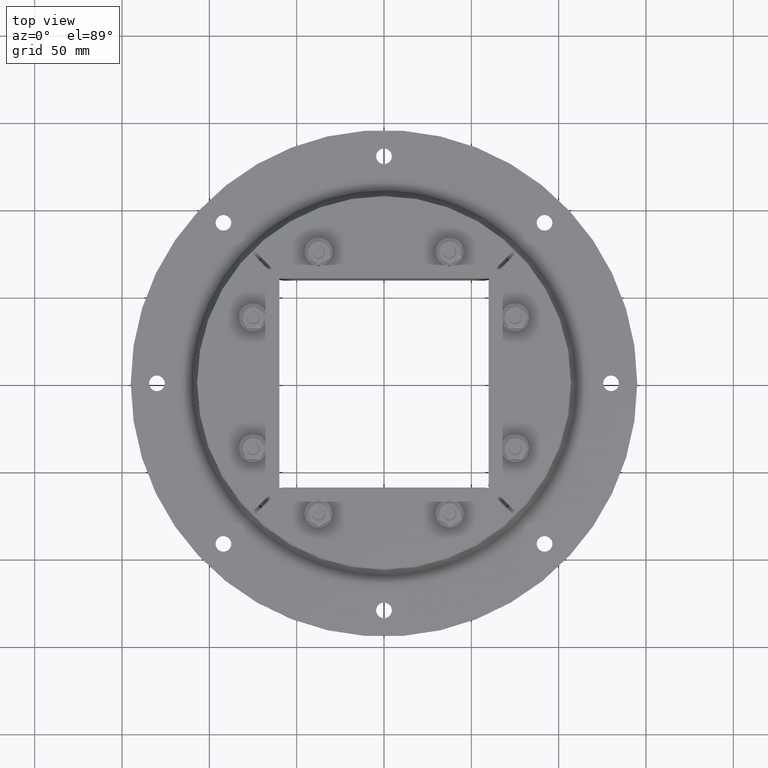
[diagram: clean part render]
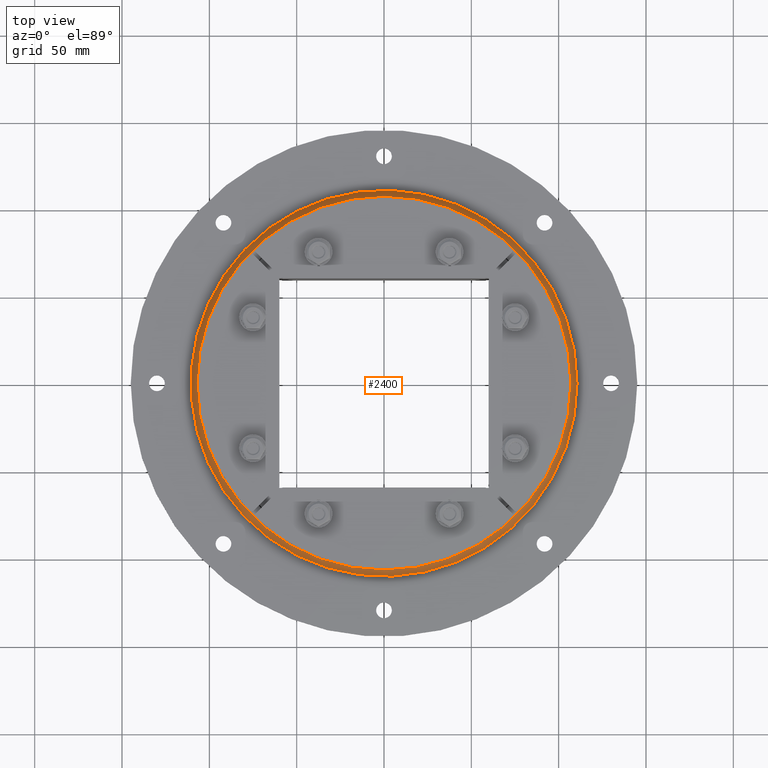
[diagram: same view with one face highlighted and labeled with its STEP entity id]
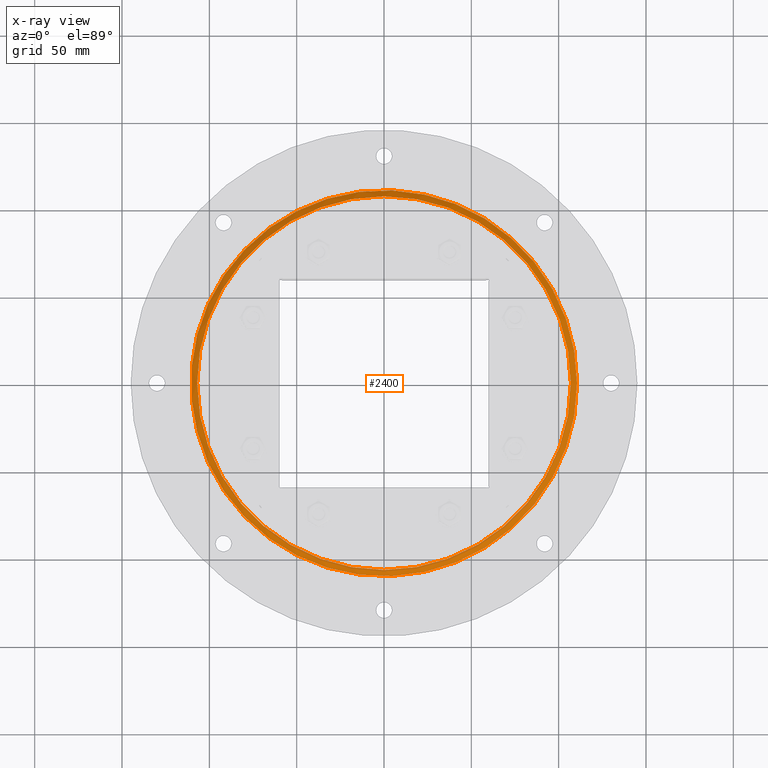
[diagram: x-ray of the same camera — body ghosted, the highlighted face saturated]
A machine part, top view. The second image highlights one B-rep face of the part: STEP entity #2400.
The next image is the same camera in x-ray: the body ghosted, the highlighted face saturated — about 0% of this face is hidden behind the body in this view.
In plain terms, the highlighted conical surface has half-angle 45 deg.
Its self-contained STEP definition (entity closure, byte-faithful):
#2373=CARTESIAN_POINT('',(0.0,0.0,-4.250000000000003));
#2374=DIRECTION('',(0.0,0.0,-1.0));
#2375=DIRECTION('',(-1.0,0.0,0.0));
#2376=AXIS2_PLACEMENT_3D('',#2373,#2374,#2375);
#2377=CONICAL_SURFACE('',#2376,108.75,44.999999999999964);
#2378=CARTESIAN_POINT('',(110.5,1.353235E-014,-6.000000000000004));
#2379=VERTEX_POINT('',#2378);
#2380=CARTESIAN_POINT('',(0.0,0.0,-6.000000000000004));
#2381=DIRECTION('',(0.0,0.0,1.0));
#2382=DIRECTION('',(-1.0,0.0,0.0));
#2383=AXIS2_PLACEMENT_3D('',#2380,#2381,#2382);
#2384=CIRCLE('',#2383,110.5);
#2385=EDGE_CURVE('',#2379,#2379,#2384,.T.);
#2386=ORIENTED_EDGE('',*,*,#2385,.T.);
#2387=EDGE_LOOP('',(#2386));
#2388=FACE_OUTER_BOUND('',#2387,.T.);
#2389=CARTESIAN_POINT('',(107.00000000000001,-1.310372E-014,-2.500000000000003));
#2390=VERTEX_POINT('',#2389);
#2391=CARTESIAN_POINT('',(0.0,0.0,-2.500000000000003));
#2392=DIRECTION('',(0.0,0.0,-1.0));
#2393=DIRECTION('',(-1.0,0.0,0.0));
#2394=AXIS2_PLACEMENT_3D('',#2391,#2392,#2393);
#2395=CIRCLE('',#2394,107.00000000000001);
#2396=EDGE_CURVE('',#2390,#2390,#2395,.T.);
#2397=ORIENTED_EDGE('',*,*,#2396,.T.);
#2398=EDGE_LOOP('',(#2397));
#2399=FACE_BOUND('',#2398,.T.);
#2400=ADVANCED_FACE('',(#2388,#2399),#2377,.T.);